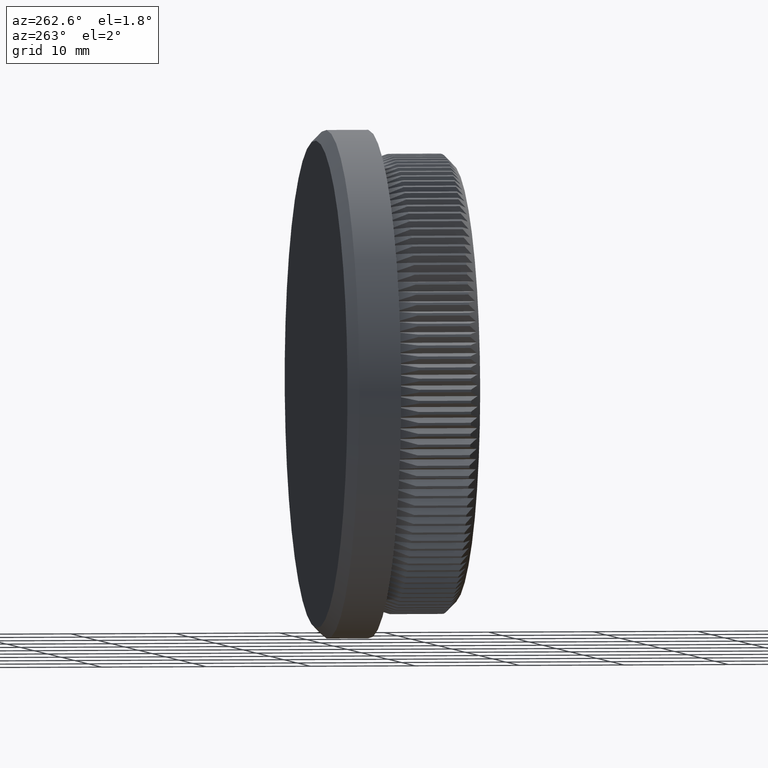
[diagram: clean part render]
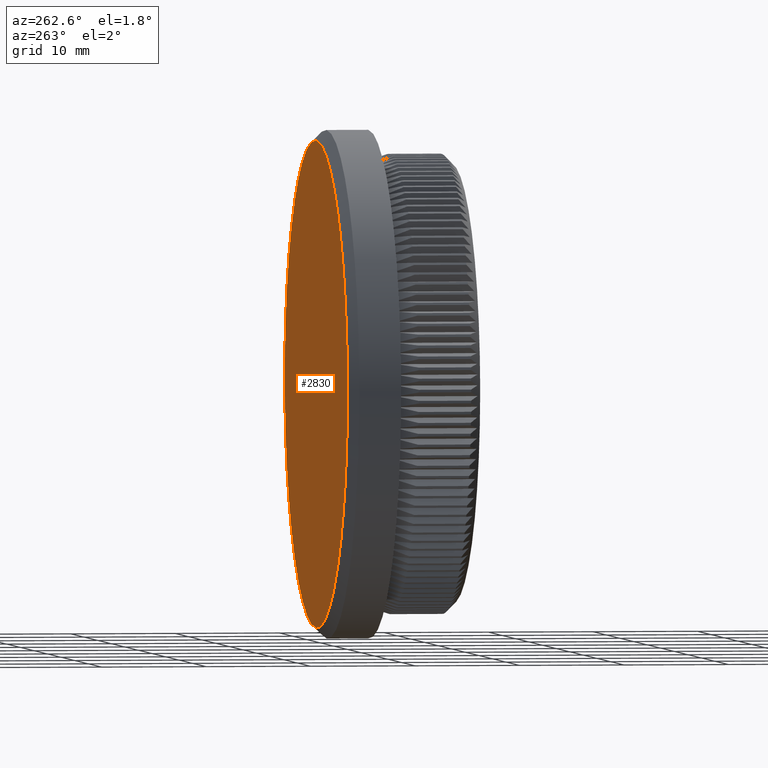
[diagram: same view with one face highlighted and labeled with its STEP entity id]
A machine part, auxiliary view. The second image highlights one B-rep face of the part: STEP entity #2830.
In plain terms, the highlighted planar face has unit normal (0, 1, 0).
Its self-contained STEP definition (entity closure, byte-faithful):
#1444 = DIRECTION ( 'NONE',  ( 0.0000000000000000000, 0.0000000000000000000, 1.000000000000000000 ) ) ;
#1508 = CIRCLE ( 'NONE', #20628, 23.14999999999999900 ) ;
#2693 = ORIENTED_EDGE ( 'NONE', *, *, #10946, .T. ) ;
#2830 = ADVANCED_FACE ( 'NONE', ( #23387 ), #17256, .T. ) ;
#2991 = EDGE_LOOP ( 'NONE', ( #7819, #2693 ) ) ;
#5948 = CARTESIAN_POINT ( 'NONE',  ( 0.0000000000000000000, 13.00000000000000000, 0.0000000000000000000 ) ) ;
#7819 = ORIENTED_EDGE ( 'NONE', *, *, #27238, .T. ) ;
#8929 = VERTEX_POINT ( 'NONE', #29047 ) ;
#10166 = CARTESIAN_POINT ( 'NONE',  ( 0.0000000000000000000, 13.00000000000000000, 0.0000000000000000000 ) ) ;
#10250 = VERTEX_POINT ( 'NONE', #30232 ) ;
#10946 = EDGE_CURVE ( 'NONE', #10250, #8929, #19397, .T. ) ;
#10972 = DIRECTION ( 'NONE',  ( 0.0000000000000000000, 1.000000000000000000, 0.0000000000000000000 ) ) ;
#12937 = DIRECTION ( 'NONE',  ( 0.0000000000000000000, 1.000000000000000000, 0.0000000000000000000 ) ) ;
#15008 = DIRECTION ( 'NONE',  ( 0.0000000000000000000, -0.0000000000000000000, 1.000000000000000000 ) ) ;
#15335 = AXIS2_PLACEMENT_3D ( 'NONE', #5948, #12937, #26178 ) ;
#15440 = CARTESIAN_POINT ( 'NONE',  ( 0.0000000000000000000, 13.00000000000000000, 0.0000000000000000000 ) ) ;
#17256 = PLANE ( 'NONE',  #26130 ) ;
#19397 = CIRCLE ( 'NONE', #15335, 23.14999999999999900 ) ;
#20628 = AXIS2_PLACEMENT_3D ( 'NONE', #15440, #10972, #1444 ) ;
#23387 = FACE_OUTER_BOUND ( 'NONE', #2991, .T. ) ;
#26130 = AXIS2_PLACEMENT_3D ( 'NONE', #10166, #26640, #15008 ) ;
#26178 = DIRECTION ( 'NONE',  ( 0.0000000000000000000, 0.0000000000000000000, 1.000000000000000000 ) ) ;
#26640 = DIRECTION ( 'NONE',  ( 0.0000000000000000000, 1.000000000000000000, 0.0000000000000000000 ) ) ;
#27238 = EDGE_CURVE ( 'NONE', #8929, #10250, #1508, .T. ) ;
#29047 = CARTESIAN_POINT ( 'NONE',  ( 0.0000000000000000000, 13.00000000000000000, -23.14999999999999900 ) ) ;
#30232 = CARTESIAN_POINT ( 'NONE',  ( 2.896289679983490000E-015, 13.00000000000000000, 23.14999999999999900 ) ) ;